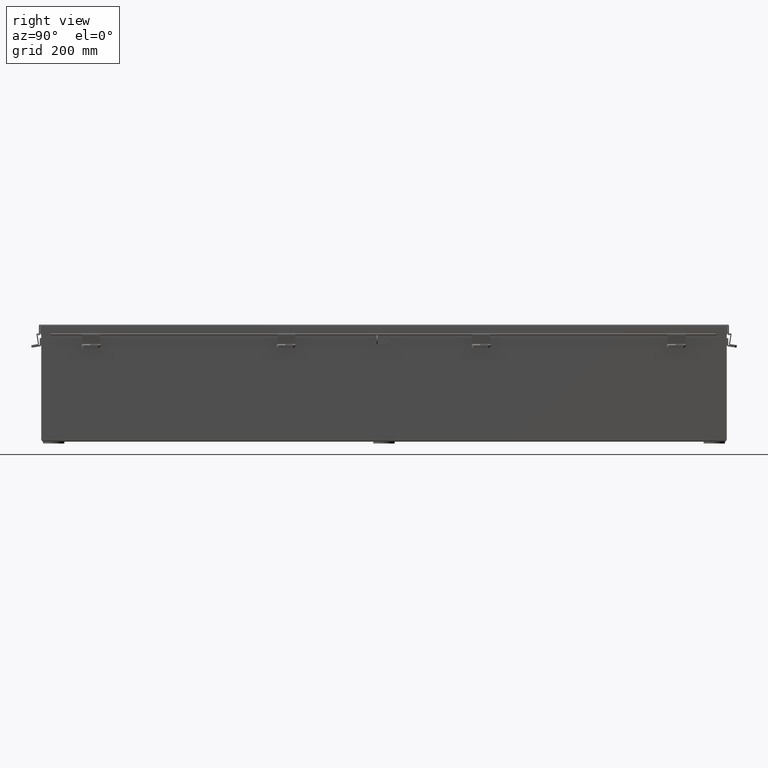
[diagram: clean part render]
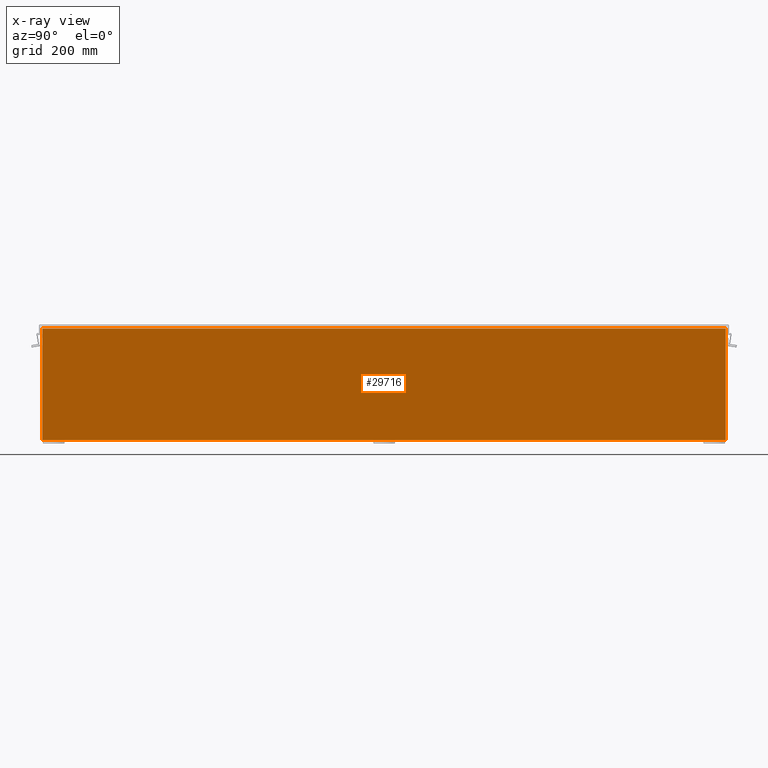
[diagram: x-ray — body ghosted, one internal face saturated and labeled with its STEP entity id]
A machine part, right view, then the same camera in x-ray: the body is ghosted and one INTERNAL B-rep face — a face not visible from any outside direction — is saturated and labeled: STEP entity #29716.
In plain terms, the highlighted planar face has unit normal (-1, 0, 0).
Its self-contained STEP definition (entity closure, byte-faithful):
#2519 = EDGE_CURVE ( 'NONE', #12654, #18891, #11838, .T. ) ;
#2742 = VECTOR ( 'NONE', #26179, 39.37007874015748100 ) ;
#3648 = CARTESIAN_POINT ( 'NONE',  ( 3.925300000000025300, 23.92530000000000000, 7.850599999999999100 ) ) ;
#6221 = EDGE_CURVE ( 'NONE', #17298, #6542, #20148, .T. ) ;
#6542 = VERTEX_POINT ( 'NONE', #25477 ) ;
#7634 = DIRECTION ( 'NONE',  ( -1.589325349289957500E-031, 1.000000000000000000, -4.567295697298285000E-017 ) ) ;
#7670 = FACE_OUTER_BOUND ( 'NONE', #10622, .T. ) ;
#9586 = DIRECTION ( 'NONE',  ( -0.0000000000000000000, -1.000000000000000000, -0.0000000000000000000 ) ) ;
#10622 = EDGE_LOOP ( 'NONE', ( #23174, #24959, #12616, #29345 ) ) ;
#11247 = CARTESIAN_POINT ( 'NONE',  ( 3.925299999999998200, 23.92529999999998900, 0.01299999999999704200 ) ) ;
#11838 = LINE ( 'NONE', #20562, #25058 ) ;
#12616 = ORIENTED_EDGE ( 'NONE', *, *, #36184, .F. ) ;
#12654 = VERTEX_POINT ( 'NONE', #31249 ) ;
#12670 = VECTOR ( 'NONE', #9586, 39.37007874015748100 ) ;
#12802 = CARTESIAN_POINT ( 'NONE',  ( 3.925300000000024400, 23.92529999999999600, 7.837599999999999200 ) ) ;
#13427 = PLANE ( 'NONE',  #30480 ) ;
#16237 = DIRECTION ( 'NONE',  ( 3.479795166820705900E-015, 0.0000000000000000000, 1.000000000000000000 ) ) ;
#16808 = LINE ( 'NONE', #3648, #2742 ) ;
#17298 = VERTEX_POINT ( 'NONE', #21374 ) ;
#18631 = LINE ( 'NONE', #23213, #25276 ) ;
#18891 = VERTEX_POINT ( 'NONE', #11247 ) ;
#20148 = LINE ( 'NONE', #12802, #12670 ) ;
#20562 = CARTESIAN_POINT ( 'NONE',  ( 3.925299999999998200, -23.92529999999998600, 0.01300000000000011600 ) ) ;
#21374 = CARTESIAN_POINT ( 'NONE',  ( 3.925300000000025300, 23.92530000000000000, 7.837599999999999200 ) ) ;
#23174 = ORIENTED_EDGE ( 'NONE', *, *, #30563, .F. ) ;
#23213 = CARTESIAN_POINT ( 'NONE',  ( 3.925299999999998200, -23.92529999999998600, 0.0000000000000000000 ) ) ;
#24959 = ORIENTED_EDGE ( 'NONE', *, *, #6221, .F. ) ;
#25058 = VECTOR ( 'NONE', #7634, 39.37007874015748100 ) ;
#25276 = VECTOR ( 'NONE', #28880, 39.37007874015748100 ) ;
#25477 = CARTESIAN_POINT ( 'NONE',  ( 3.925300000000024400, -23.92529999999998600, 7.837599999999999200 ) ) ;
#26179 = DIRECTION ( 'NONE',  ( 3.479795166820706300E-015, -0.0000000000000000000, 1.000000000000000000 ) ) ;
#28880 = DIRECTION ( 'NONE',  ( -3.479795166820706300E-015, -0.0000000000000000000, -1.000000000000000000 ) ) ;
#29345 = ORIENTED_EDGE ( 'NONE', *, *, #2519, .F. ) ;
#29716 = ADVANCED_FACE ( 'NONE', ( #7670 ), #13427, .T. ) ;
#30480 = AXIS2_PLACEMENT_3D ( 'NONE', #35662, #33084, #16237 ) ;
#30563 = EDGE_CURVE ( 'NONE', #6542, #12654, #18631, .T. ) ;
#31249 = CARTESIAN_POINT ( 'NONE',  ( 3.925299999999998200, -23.92529999999998200, 0.01300000000000096900 ) ) ;
#33084 = DIRECTION ( 'NONE',  ( -1.000000000000000000, 0.0000000000000000000, 3.479795166820705900E-015 ) ) ;
#35662 = CARTESIAN_POINT ( 'NONE',  ( 3.925299999999998200, 0.0000000000000000000, -1.391535071772734100E-014 ) ) ;
#36184 = EDGE_CURVE ( 'NONE', #18891, #17298, #16808, .T. ) ;